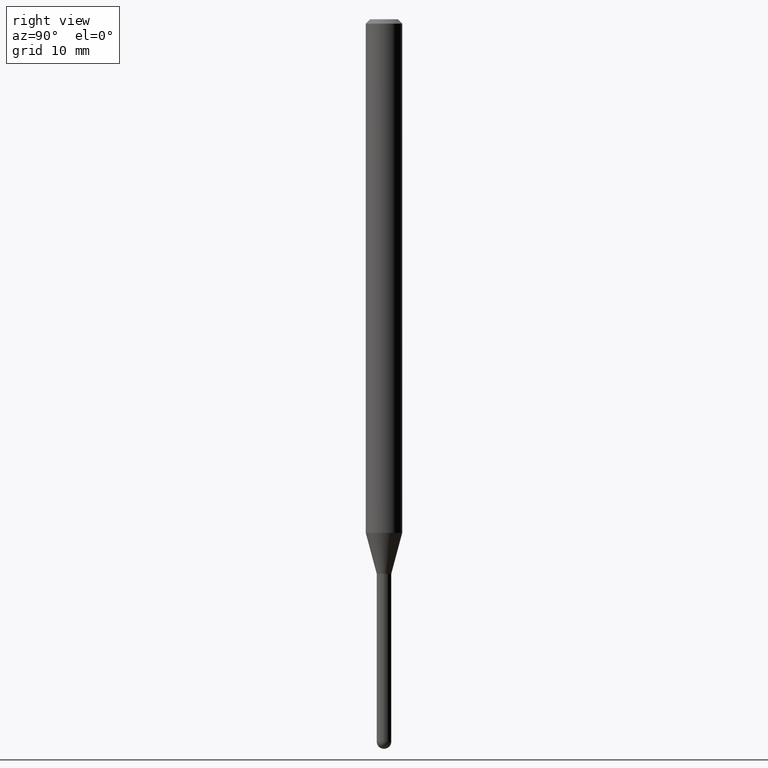
[diagram: clean part render]
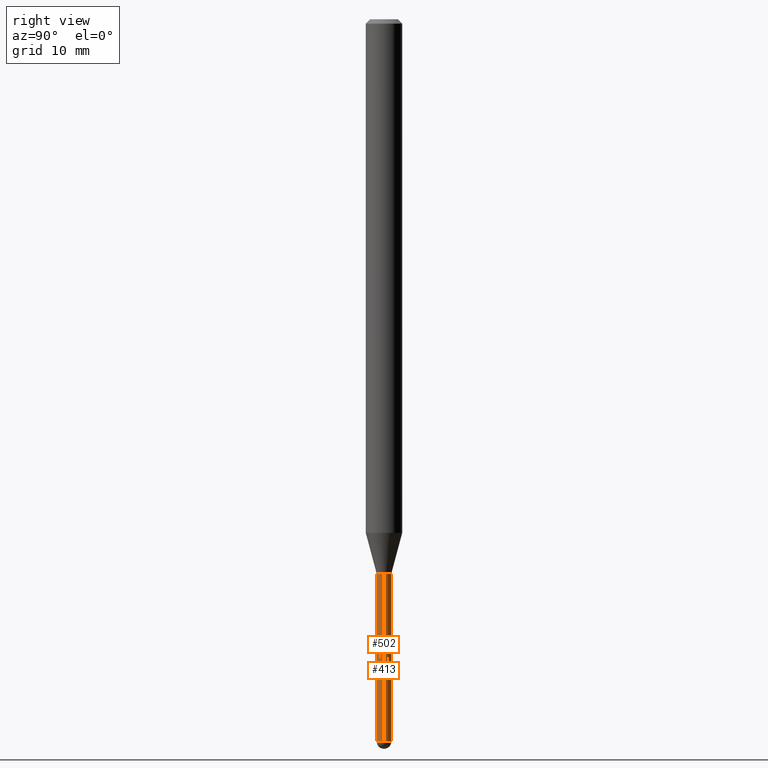
[diagram: same view with one multi-face feature highlighted, each face labeled with its STEP entity id]
A machine part, right view. The highlighted faces form ONE feature: a constant-radius fillet chain: 2 tangent blend faces with common blend radius 0.635 mm. The faces share edges in the B-rep.
Their STEP definitions:
[1] entity #502 (Cylinder):
#10 = CARTESIAN_POINT ( 'NONE',  ( 6.052535295308213750E-29, -8.641416313636786609E-15, -2.475000000000000089 ) ) ;
#27 = CYLINDRICAL_SURFACE ( 'NONE', #447, 0.02500000000000000486 ) ;
#30 = CARTESIAN_POINT ( 'NONE',  ( 0.000000000000000000, 0.000000000000000000, 0.000000000000000000 ) ) ;
#46 = DIRECTION ( 'NONE',  ( 1.000000000000000000, -6.982962677686253300E-15, 0.000000000000000000 ) ) ;
#61 = ORIENTED_EDGE ( 'NONE', *, *, #323, .F. ) ;
#67 = CARTESIAN_POINT ( 'NONE',  ( -1.776356839399643140E-16, -0.02500000000000861256, -2.475000000000000089 ) ) ;
#74 = CIRCLE ( 'NONE', #134, 0.02500000000000000486 ) ;
#86 = CARTESIAN_POINT ( 'NONE',  ( -0.02500000000000000486, -7.459979744779357409E-15, -2.475000000000000089 ) ) ;
#91 = CARTESIAN_POINT ( 'NONE',  ( 6.052535295308213750E-29, -8.641416313636786609E-15, -2.475000000000000089 ) ) ;
#104 = VECTOR ( 'NONE', #510, 39.37007874015748143 ) ;
#116 = CIRCLE ( 'NONE', #409, 0.02500000000000000486 ) ;
#117 = EDGE_CURVE ( 'NONE', #324, #484, #277, .T. ) ;
#125 = DIRECTION ( 'NONE',  ( -2.445468806185136877E-29, 3.491481338843145188E-15, 1.000000000000000000 ) ) ;
#130 = DIRECTION ( 'NONE',  ( -2.445468806185136597E-29, 3.491481338843145583E-15, 1.000000000000000000 ) ) ;
#134 = AXIS2_PLACEMENT_3D ( 'NONE', #10, #179, #196 ) ;
#139 = DIRECTION ( 'NONE',  ( 1.000000000000000000, -6.982962677686254878E-15, 0.000000000000000000 ) ) ;
#179 = DIRECTION ( 'NONE',  ( -2.445468806185136597E-29, 3.491481338843145583E-15, 1.000000000000000000 ) ) ;
#196 = DIRECTION ( 'NONE',  ( 1.000000000000000000, -6.982962677686253300E-15, 0.000000000000000000 ) ) ;
#200 = LINE ( 'NONE', #351, #104 ) ;
#222 = ORIENTED_EDGE ( 'NONE', *, *, #117, .F. ) ;
#252 = EDGE_CURVE ( 'NONE', #286, #484, #200, .T. ) ;
#277 = CIRCLE ( 'NONE', #313, 0.02500000000000000139 ) ;
#286 = VERTEX_POINT ( 'NONE', #408 ) ;
#301 = CARTESIAN_POINT ( 'NONE',  ( 0.02500000000000000139, -6.808388610744133709E-15, -1.900000000000000133 ) ) ;
#302 = VECTOR ( 'NONE', #125, 39.37007874015748143 ) ;
#307 = VERTEX_POINT ( 'NONE', #86 ) ;
#313 = AXIS2_PLACEMENT_3D ( 'NONE', #340, #488, #139 ) ;
#323 = EDGE_CURVE ( 'NONE', #307, #324, #371, .T. ) ;
#324 = VERTEX_POINT ( 'NONE', #483 ) ;
#340 = CARTESIAN_POINT ( 'NONE',  ( 4.646390731751759982E-29, -6.633814543801977041E-15, -1.900000000000000133 ) ) ;
#344 = DIRECTION ( 'NONE',  ( -2.445468806185136597E-29, 3.491481338843145583E-15, 1.000000000000000000 ) ) ;
#345 = EDGE_CURVE ( 'NONE', #307, #491, #116, .T. ) ;
#348 = DIRECTION ( 'NONE',  ( 1.000000000000000000, -6.982962677686267499E-15, 4.876176775795936353E-29 ) ) ;
#351 = CARTESIAN_POINT ( 'NONE',  ( 0.02500000000000000486, -1.745740669421567171E-16, 1.219044193948984299E-30 ) ) ;
#361 = ORIENTED_EDGE ( 'NONE', *, *, #252, .T. ) ;
#368 = EDGE_LOOP ( 'NONE', ( #61, #457, #471, #361, #222 ) ) ;
#371 = LINE ( 'NONE', #440, #302 ) ;
#381 = FACE_OUTER_BOUND ( 'NONE', #368, .T. ) ;
#408 = CARTESIAN_POINT ( 'NONE',  ( 0.02500000000000000486, -7.812189495661538493E-15, -2.475000000000000089 ) ) ;
#409 = AXIS2_PLACEMENT_3D ( 'NONE', #91, #130, #46 ) ;
#430 = EDGE_CURVE ( 'NONE', #491, #286, #74, .T. ) ;
#440 = CARTESIAN_POINT ( 'NONE',  ( -0.02500000000000000486, 1.776356839400250810E-16, -1.229733772563726656E-30 ) ) ;
#447 = AXIS2_PLACEMENT_3D ( 'NONE', #30, #344, #348 ) ;
#457 = ORIENTED_EDGE ( 'NONE', *, *, #345, .T. ) ;
#471 = ORIENTED_EDGE ( 'NONE', *, *, #430, .T. ) ;
#483 = CARTESIAN_POINT ( 'NONE',  ( -0.02500000000000000139, -7.459979744779357409E-15, -1.900000000000000133 ) ) ;
#484 = VERTEX_POINT ( 'NONE', #301 ) ;
#488 = DIRECTION ( 'NONE',  ( -2.445468806185136597E-29, 3.491481338843145583E-15, 1.000000000000000000 ) ) ;
#491 = VERTEX_POINT ( 'NONE', #67 ) ;
#502 = ADVANCED_FACE ( 'NONE', ( #381 ), #27, .T. ) ;
#510 = DIRECTION ( 'NONE',  ( -2.445468806185136877E-29, 3.491481338843145188E-15, 1.000000000000000000 ) ) ;
[2] entity #413 (Cylinder):
#1 = AXIS2_PLACEMENT_3D ( 'NONE', #136, #431, #210 ) ;
#37 = CIRCLE ( 'NONE', #95, 0.02500000000000000486 ) ;
#39 = EDGE_CURVE ( 'NONE', #382, #307, #504, .T. ) ;
#66 = CARTESIAN_POINT ( 'NONE',  ( 6.052535295308213750E-29, -8.641416313636786609E-15, -2.475000000000000089 ) ) ;
#72 = DIRECTION ( 'NONE',  ( -2.445468806185136597E-29, 3.491481338843145583E-15, 1.000000000000000000 ) ) ;
#86 = CARTESIAN_POINT ( 'NONE',  ( -0.02500000000000000486, -7.459979744779357409E-15, -2.475000000000000089 ) ) ;
#95 = AXIS2_PLACEMENT_3D ( 'NONE', #66, #450, #101 ) ;
#101 = DIRECTION ( 'NONE',  ( 1.000000000000000000, -6.982962677686253300E-15, 0.000000000000000000 ) ) ;
#104 = VECTOR ( 'NONE', #510, 39.37007874015748143 ) ;
#125 = DIRECTION ( 'NONE',  ( -2.445468806185136877E-29, 3.491481338843145188E-15, 1.000000000000000000 ) ) ;
#136 = CARTESIAN_POINT ( 'NONE',  ( 0.000000000000000000, 0.000000000000000000, 0.000000000000000000 ) ) ;
#137 = EDGE_CURVE ( 'NONE', #286, #382, #37, .T. ) ;
#154 = ORIENTED_EDGE ( 'NONE', *, *, #39, .T. ) ;
#174 = ORIENTED_EDGE ( 'NONE', *, *, #511, .F. ) ;
#189 = AXIS2_PLACEMENT_3D ( 'NONE', #270, #72, #236 ) ;
#191 = ORIENTED_EDGE ( 'NONE', *, *, #252, .F. ) ;
#200 = LINE ( 'NONE', #351, #104 ) ;
#204 = EDGE_LOOP ( 'NONE', ( #154, #260, #174, #191, #495 ) ) ;
#210 = DIRECTION ( 'NONE',  ( 1.000000000000000000, -6.982962677686267499E-15, 4.876176775795936353E-29 ) ) ;
#236 = DIRECTION ( 'NONE',  ( 1.000000000000000000, -6.982962677686254878E-15, 0.000000000000000000 ) ) ;
#252 = EDGE_CURVE ( 'NONE', #286, #484, #200, .T. ) ;
#260 = ORIENTED_EDGE ( 'NONE', *, *, #323, .T. ) ;
#270 = CARTESIAN_POINT ( 'NONE',  ( 4.646390731751759982E-29, -6.633814543801977041E-15, -1.900000000000000133 ) ) ;
#283 = AXIS2_PLACEMENT_3D ( 'NONE', #439, #333, #397 ) ;
#286 = VERTEX_POINT ( 'NONE', #408 ) ;
#290 = CARTESIAN_POINT ( 'NONE',  ( 1.745740669422169663E-16, 0.02499999999999133124, -2.475000000000000089 ) ) ;
#301 = CARTESIAN_POINT ( 'NONE',  ( 0.02500000000000000139, -6.808388610744133709E-15, -1.900000000000000133 ) ) ;
#302 = VECTOR ( 'NONE', #125, 39.37007874015748143 ) ;
#307 = VERTEX_POINT ( 'NONE', #86 ) ;
#323 = EDGE_CURVE ( 'NONE', #307, #324, #371, .T. ) ;
#324 = VERTEX_POINT ( 'NONE', #483 ) ;
#333 = DIRECTION ( 'NONE',  ( -2.445468806185136597E-29, 3.491481338843145583E-15, 1.000000000000000000 ) ) ;
#351 = CARTESIAN_POINT ( 'NONE',  ( 0.02500000000000000486, -1.745740669421567171E-16, 1.219044193948984299E-30 ) ) ;
#371 = LINE ( 'NONE', #440, #302 ) ;
#382 = VERTEX_POINT ( 'NONE', #290 ) ;
#397 = DIRECTION ( 'NONE',  ( 1.000000000000000000, -6.982962677686253300E-15, 0.000000000000000000 ) ) ;
#402 = FACE_OUTER_BOUND ( 'NONE', #204, .T. ) ;
#408 = CARTESIAN_POINT ( 'NONE',  ( 0.02500000000000000486, -7.812189495661538493E-15, -2.475000000000000089 ) ) ;
#413 = ADVANCED_FACE ( 'NONE', ( #402 ), #486, .T. ) ;
#431 = DIRECTION ( 'NONE',  ( -2.445468806185136597E-29, 3.491481338843145583E-15, 1.000000000000000000 ) ) ;
#439 = CARTESIAN_POINT ( 'NONE',  ( 6.052535295308213750E-29, -8.641416313636786609E-15, -2.475000000000000089 ) ) ;
#440 = CARTESIAN_POINT ( 'NONE',  ( -0.02500000000000000486, 1.776356839400250810E-16, -1.229733772563726656E-30 ) ) ;
#450 = DIRECTION ( 'NONE',  ( -2.445468806185136597E-29, 3.491481338843145583E-15, 1.000000000000000000 ) ) ;
#483 = CARTESIAN_POINT ( 'NONE',  ( -0.02500000000000000139, -7.459979744779357409E-15, -1.900000000000000133 ) ) ;
#484 = VERTEX_POINT ( 'NONE', #301 ) ;
#486 = CYLINDRICAL_SURFACE ( 'NONE', #1, 0.02500000000000000486 ) ;
#487 = CIRCLE ( 'NONE', #189, 0.02500000000000000139 ) ;
#495 = ORIENTED_EDGE ( 'NONE', *, *, #137, .T. ) ;
#504 = CIRCLE ( 'NONE', #283, 0.02500000000000000486 ) ;
#510 = DIRECTION ( 'NONE',  ( -2.445468806185136877E-29, 3.491481338843145188E-15, 1.000000000000000000 ) ) ;
#511 = EDGE_CURVE ( 'NONE', #484, #324, #487, .T. ) ;